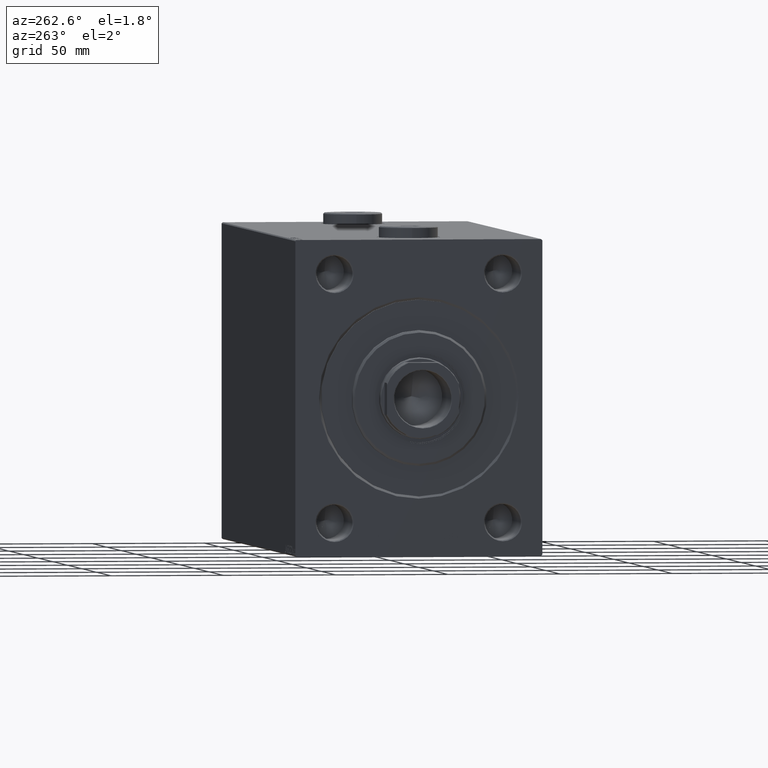
[diagram: clean part render]
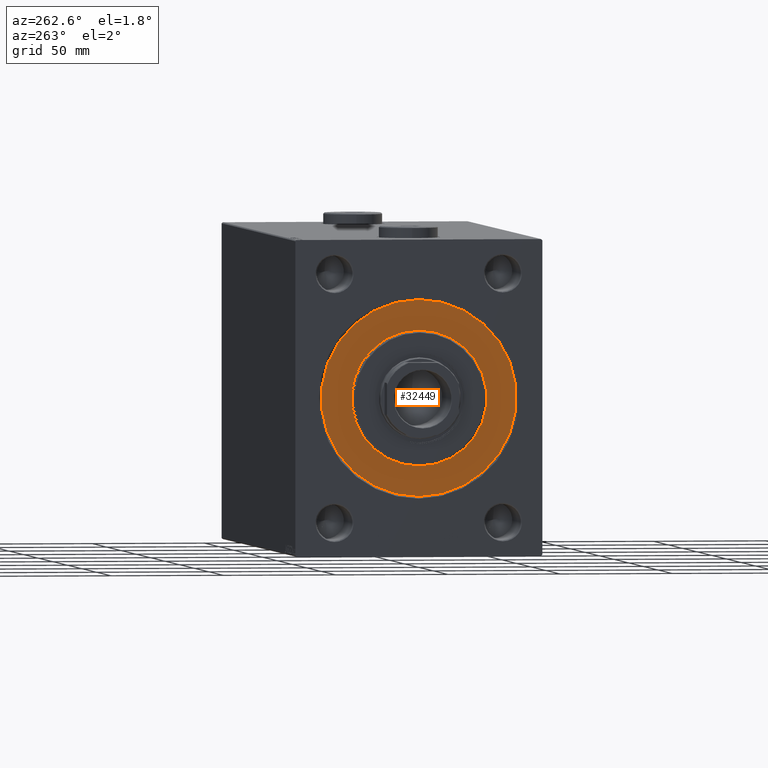
[diagram: same view with one face highlighted and labeled with its STEP entity id]
A machine part, auxiliary view. The second image highlights one B-rep face of the part: STEP entity #32449.
In plain terms, the highlighted planar face has unit normal (1, -0, -0).
Its self-contained STEP definition (entity closure, byte-faithful):
#700 = VERTEX_POINT ( 'NONE', #41540 ) ;
#3165 = CIRCLE ( 'NONE', #33411, 43.50000000000000000 ) ;
#3459 = EDGE_CURVE ( 'NONE', #31883, #9559, #41734, .T. ) ;
#3963 = ORIENTED_EDGE ( 'NONE', *, *, #3459, .F. ) ;
#4517 = DIRECTION ( 'NONE',  ( 0.000000000000000000, 0.000000000000000000, 1.000000000000000000 ) ) ;
#7427 = CARTESIAN_POINT ( 'NONE',  ( 0.000000000000000000, 0.000000000000000000, 0.000000000000000000 ) ) ;
#8689 = FACE_OUTER_BOUND ( 'NONE', #20305, .T. ) ;
#8844 = DIRECTION ( 'NONE',  ( 1.000000000000000000, -0.000000000000000000, 0.000000000000000000 ) ) ;
#9559 = VERTEX_POINT ( 'NONE', #27048 ) ;
#10586 = AXIS2_PLACEMENT_3D ( 'NONE', #19681, #8844, #36335 ) ;
#12107 = DIRECTION ( 'NONE',  ( -1.000000000000000000, 0.000000000000000000, 0.000000000000000000 ) ) ;
#12530 = CARTESIAN_POINT ( 'NONE',  ( 0.000000000000000000, 5.327213576290986044E-15, 43.50000000000000000 ) ) ;
#14352 = DIRECTION ( 'NONE',  ( 1.000000000000000000, -0.000000000000000000, 0.000000000000000000 ) ) ;
#14654 = AXIS2_PLACEMENT_3D ( 'NONE', #19778, #19321, #44067 ) ;
#15832 = PLANE ( 'NONE',  #44154 ) ;
#16479 = EDGE_CURVE ( 'NONE', #9559, #31883, #42320, .T. ) ;
#17375 = AXIS2_PLACEMENT_3D ( 'NONE', #7427, #14352, #43671 ) ;
#19321 = DIRECTION ( 'NONE',  ( -1.000000000000000000, 0.000000000000000000, 0.000000000000000000 ) ) ;
#19681 = CARTESIAN_POINT ( 'NONE',  ( 0.000000000000000000, 0.000000000000000000, 0.000000000000000000 ) ) ;
#19778 = CARTESIAN_POINT ( 'NONE',  ( 0.000000000000000000, 0.000000000000000000, 0.000000000000000000 ) ) ;
#20305 = EDGE_LOOP ( 'NONE', ( #39860, #42679 ) ) ;
#25528 = CARTESIAN_POINT ( 'NONE',  ( 0.000000000000000000, 0.000000000000000000, 0.000000000000000000 ) ) ;
#27048 = CARTESIAN_POINT ( 'NONE',  ( 0.000000000000000000, 0.000000000000000000, 30.00000000000000000 ) ) ;
#27178 = CIRCLE ( 'NONE', #14654, 43.50000000000000000 ) ;
#29417 = DIRECTION ( 'NONE',  ( 0.000000000000000000, 0.000000000000000000, 1.000000000000000000 ) ) ;
#29641 = CARTESIAN_POINT ( 'NONE',  ( 0.000000000000000000, 0.000000000000000000, 0.000000000000000000 ) ) ;
#29915 = DIRECTION ( 'NONE',  ( -1.000000000000000000, 0.000000000000000000, 0.000000000000000000 ) ) ;
#31883 = VERTEX_POINT ( 'NONE', #40964 ) ;
#31946 = VERTEX_POINT ( 'NONE', #12530 ) ;
#32449 = ADVANCED_FACE ( 'NONE', ( #40572, #8689 ), #15832, .F. ) ;
#33411 = AXIS2_PLACEMENT_3D ( 'NONE', #29641, #12107, #29417 ) ;
#34815 = ORIENTED_EDGE ( 'NONE', *, *, #16479, .F. ) ;
#36335 = DIRECTION ( 'NONE',  ( 0.000000000000000000, 0.000000000000000000, -1.000000000000000000 ) ) ;
#37889 = EDGE_CURVE ( 'NONE', #700, #31946, #27178, .T. ) ;
#39513 = EDGE_LOOP ( 'NONE', ( #34815, #3963 ) ) ;
#39860 = ORIENTED_EDGE ( 'NONE', *, *, #37889, .F. ) ;
#40572 = FACE_BOUND ( 'NONE', #39513, .T. ) ;
#40964 = CARTESIAN_POINT ( 'NONE',  ( 0.000000000000000000, 3.673940397442059178E-15, -30.00000000000000000 ) ) ;
#41540 = CARTESIAN_POINT ( 'NONE',  ( 0.000000000000000000, 0.000000000000000000, -43.50000000000000000 ) ) ;
#41734 = CIRCLE ( 'NONE', #17375, 30.00000000000000000 ) ;
#42320 = CIRCLE ( 'NONE', #10586, 30.00000000000000000 ) ;
#42581 = EDGE_CURVE ( 'NONE', #31946, #700, #3165, .T. ) ;
#42679 = ORIENTED_EDGE ( 'NONE', *, *, #42581, .F. ) ;
#43671 = DIRECTION ( 'NONE',  ( 0.000000000000000000, 0.000000000000000000, -1.000000000000000000 ) ) ;
#44067 = DIRECTION ( 'NONE',  ( 0.000000000000000000, 0.000000000000000000, 1.000000000000000000 ) ) ;
#44154 = AXIS2_PLACEMENT_3D ( 'NONE', #25528, #29915, #4517 ) ;